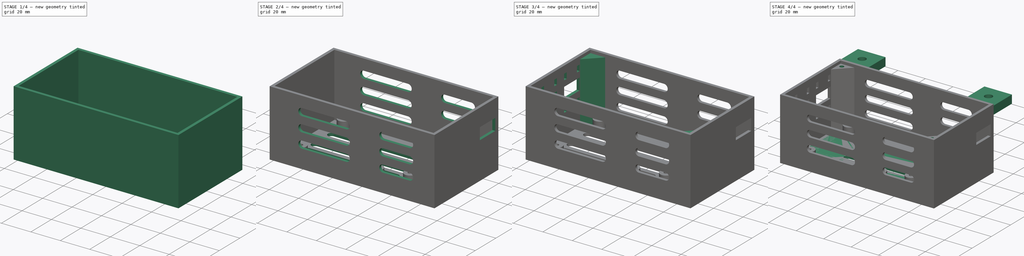
[diagram: build sequence overview — one tinted view per stage of 4, left to right]
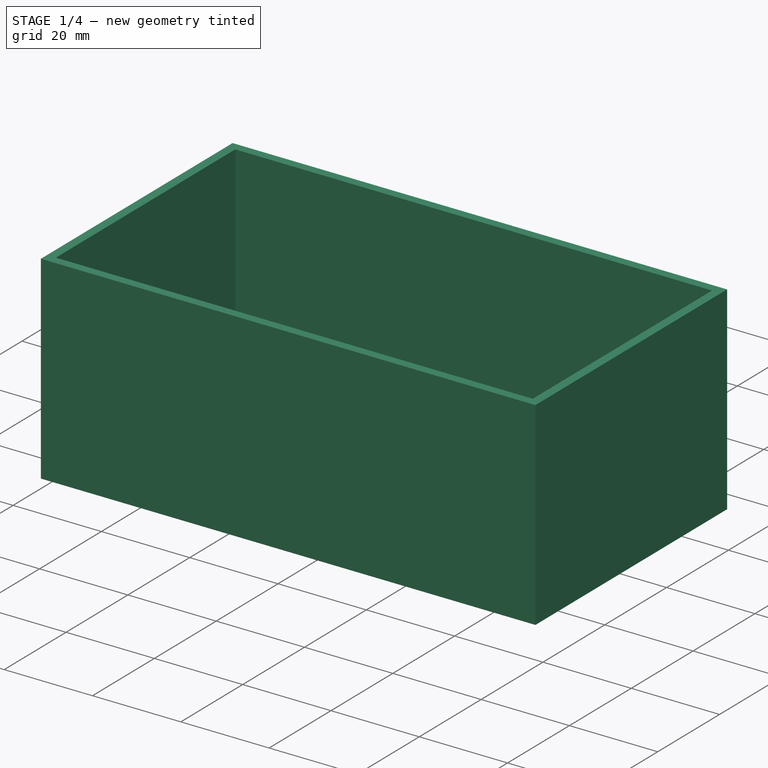
[diagram: stage 1 of 4 — iso view after this stage's code; geometry added in this stage tinted green]
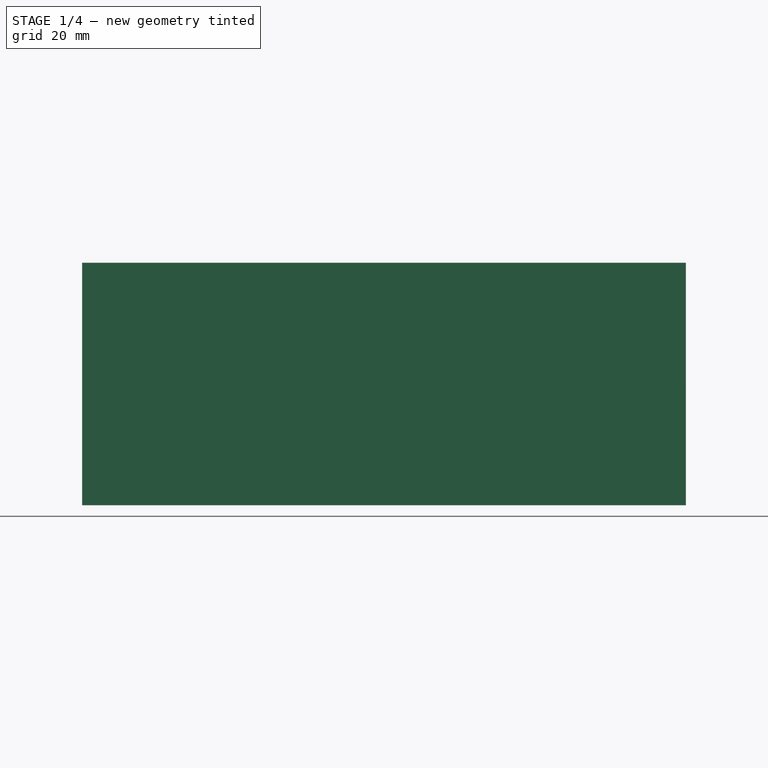
[diagram: stage 1 of 4 — front view after this stage's code; geometry added in this stage tinted green]
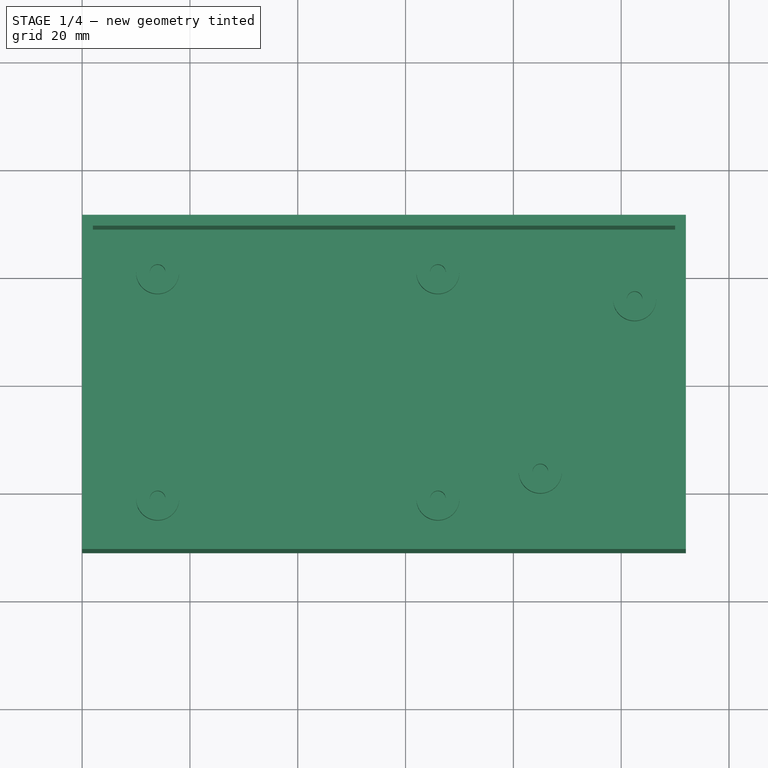
[diagram: stage 1 of 4 — top view after this stage's code; geometry added in this stage tinted green]
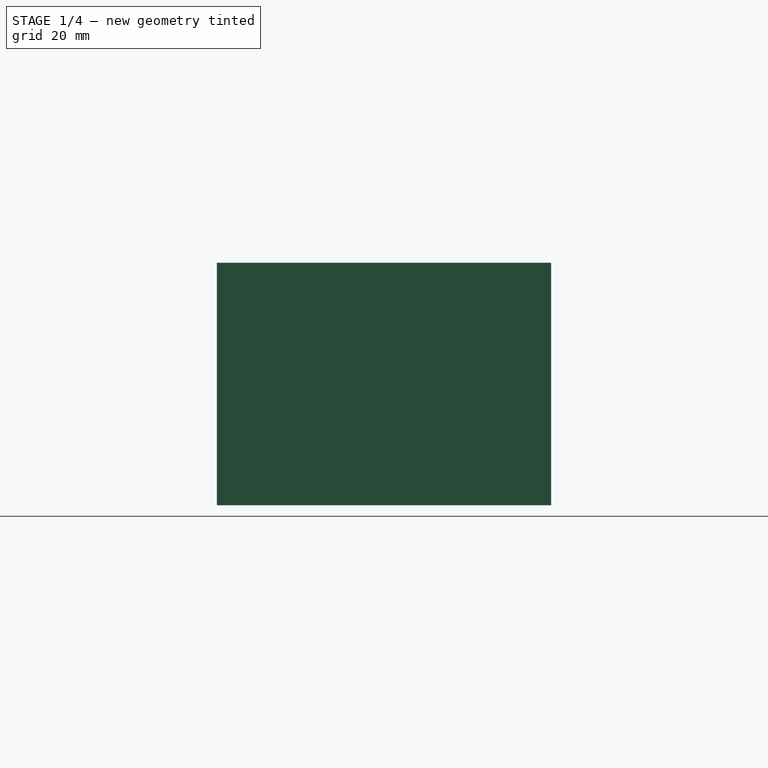
[diagram: stage 1 of 4 — right view after this stage's code; geometry added in this stage tinted green]
FCSTD DOCUMENT  (FreeCAD 0.20R27861 (Git))
Label: HB MOSFET and buck converter box
License: All rights reserved
LicenseURL: http://en.wikipedia.org/wiki/All_rights_reserved
objects: Part::Feature×16, Sketcher::SketchObject×10, PartDesign::Pad×5, PartDesign::Pocket×5, App::Part×2, PartDesign::Plane×2, PartDesign::Body×2, PartDesign::SubShapeBinder×1, PartDesign::Thickness×1
note: 53 computed .brp shape members not serialized (recipe doc carries the construction recipe); baked Part::Feature solids carry a one-line shape summary decoded from their .brp

FEATURE [Part::Feature] Part__Feature  label="BIQU-3D0109 Board"
  shape: bbox 60 x 50 x 1.5 mm, 838 faces (baked)
FEATURE [Part::Feature] Part__Feature001  label="KF1000"
  Placement = pos=(-11.9373,-0.980298,8.81355) rot=(1,0,0;1.5708rad)
  shape: bbox 14.51 x 41.21 x 17.09 mm, 508 faces, 13 solids (baked)
FEATURE [Part::Feature] Part__Feature002  label="SOIC-4 (Fairchild)"
  Placement = pos=(17.149,18.8625,1.4) rot=(1,0,0;1.5708rad)
  shape: bbox 4.7 x 6.2 x 1.75 mm, 203 faces (baked)
FEATURE [Part::Feature] Part__Feature003  label="SHELL"
  shape: bbox 1.1 x 0.8 x 0.05 mm, 6 faces, 0 solids (baked)
FEATURE [Part::Feature] Part__Feature004  label="COMPOUND"
  shape: bbox 1.6 x 0.9603 x 0.45 mm, 12 faces, 2 solids (baked)
FEATURE [App::Part] RES0603
  Group = -> [Part__Feature003,Part__Feature004]
  Origin = -> Origin
  Placement = pos=(-6.30389,22.6625,2.03313) rot=(0,0,1;0rad)
FEATURE [Part::Feature] Part__Feature005  label="Surface Mount Chip LED 3.2x1.6mm 2"
  Placement = pos=(-12.9211,22.9749,1.39798) rot=(0,0,1;0rad)
  shape: bbox 2.771 x 1.491 x 0.6672 mm, 108 faces, 0 solids (baked)
FEATURE [Part::Feature] Part__Feature006  label="RES0805 ipt"
  Placement = pos=(0.20371,20.6103,1.75) rot=(0.578357,0.576846,0.576846;2.09288rad)
  shape: bbox 1.255 x 2.003 x 0.5 mm, 44 faces, 3 solids (baked)
FEATURE [Part::Feature] Part__Feature007  label="RES0805 ipt001"
  Placement = pos=(7.52561,-23.6671,1.75) rot=(1,0,0;1.5708rad)
  shape: bbox 2 x 1.25 x 0.5 mm, 44 faces, 3 solids (baked)
FEATURE [Part::Feature] Part__Feature008  label="RES0805 ipt002"
  Placement = pos=(12.3309,-23.6577,1.75) rot=(1,0,0;1.5708rad)
  shape: bbox 2 x 1.25 x 0.5 mm, 44 faces, 3 solids (baked)
FEATURE [Part::Feature] Part__Feature009  label="RES0805 ipt003"
  Placement = pos=(17.5166,-23.6062,1.75) rot=(1,0,0;1.5708rad)
  shape: bbox 2 x 1.25 x 0.5 mm, 44 faces, 3 solids (baked)
FEATURE [Part::Feature] Part__Feature010  label="Surface Mount Chip LED 3.2x1.6mm 003"
  Placement = pos=(2.01576,20.4791,1.39798) rot=(0,0,-1;1.57048rad)
  shape: bbox 1.492 x 2.772 x 0.6672 mm, 108 faces, 0 solids (baked)
FEATURE [Part::Feature] Part__Feature011  label="Part41"
  Placement = pos=(14.4584,1.54168,1.5) rot=(0,0,1;0rad)
  shape: bbox 16 x 23 x 27 mm, 55 faces (baked)
FEATURE [Part::Feature] Part__Feature012  label="817C"
  Placement = pos=(13.35,-16.97,3.41) rot=(0,0,1;1.5708rad)
  shape: bbox 10.18 x 4.6 x 3.76 mm, 166 faces (baked)
FEATURE [Part::Feature] Part__Feature013  label="HA210N06"
  Placement = pos=(11.0584,1.16668,15.55) rot=(0.57735,-0.57735,-0.57735;2.0944rad)
  shape: bbox 4.8 x 15.6 x 26.4 mm, 44 faces (baked)
FEATURE [Part::Feature] Part__Feature014  label="BIQU-3D0109 WhiteConnector"
  Placement = pos=(8.05,18.55,5) rot=(0,0,1;0rad)
  shape: bbox 7.517 x 5.717 x 9.217 mm, 99 faces, 3 solids (baked)
FEATURE [Part::Feature] Part__Feature015  label="DIN EN ISO 7045 - M3 x 8 - 4.8 - Z"
  Placement = pos=(8.65837,1.16668,20.5) rot=(0,0,1;0rad)
  shape: bbox 10.42 x 6.001 x 6.001 mm, 43 faces (baked)
FEATURE [App::Part] BIQU_3D0109  label="BIQU-3D0109"
  Group = -> [Part__Feature,Part__Feature001,Part__Feature002,RES0603,Part__Feature005,Part__Feature006,Part__Feature007,Part__Feature008,Part__Feature009,Part__Feature010,Part__Feature011,Part__Feature012,Part__Feature013,Part__Feature014,Part__Feature015]
  Origin = -> Origin001
  Placement = pos=(0,0,9) rot=(0,0,1;0rad)
FEATURE [PartDesign::SubShapeBinder] Binder
  BindCopyOnChange = 0
  BindMode = 0
  ClaimChildren = false
  Context = -> Body [Binder.]
  Fuse = false
  MakeFace = true
  PartialLoad = false
  Relative = true
  Support = -> [BIQU_3D0109]
  _Version = 2
FEATURE [Sketcher::SketchObject] Sketch
  FullyConstrained = true
  MapMode = 5
  Support = -> [XY_Plane002]
  sketch-geometry (4):
    g0: LineSegment StartX=-40 StartY=31 StartZ=0 EndX=72 EndY=31 EndZ=0
    g1: LineSegment StartX=72 StartY=31 StartZ=0 EndX=72 EndY=-31 EndZ=0
    g2: LineSegment StartX=72 StartY=-31 StartZ=0 EndX=-40 EndY=-31 EndZ=0
    g3: LineSegment StartX=-40 StartY=-31 StartZ=0 EndX=-40 EndY=31 EndZ=0
  constraints (11):
    c: Coincident(g0,g1)
    c: Coincident(g1,g2)
    c: Coincident(g2,g3)
    c: Coincident(g3,g0)
    c: Horizontal(g0)
    c: Horizontal(g2)
    c: Vertical(g1)
    c: Symmetric(g0,g2,g-1)
    c: DistanceX(g0,g-1) = 40
    c: DistanceY(g-1,g0) = 31
    c: DistanceX(g0,g0) = 112
FEATURE [PartDesign::Pad] Pad
  Direction = (0,0,1)
  Length = 45
  Length2 = 10
  Profile = -> Sketch
  ReferenceAxis = -> Sketch [N_Axis]
  Refine = true
  Type = 0
FEATURE [PartDesign::Thickness] Thickness
  Base = -> Pad [Face6]
  BaseFeature = -> Pad
  Intersection = false
  Join = 1
  Mode = 0
  Refine = true
  Reversed = true
  SupportTransform = false
  Value = 2
FEATURE [Sketcher::SketchObject] Sketch001
  ExternalGeometry = -> [Binder]
  FullyConstrained = true
  MapMode = 5
  Support = -> [XY_Plane002]
  sketch-geometry (16):
    g0: Circle CenterX=-26 CenterY=21 CenterZ=0 NormalX=0 NormalY=0 NormalZ=1 AngleXU=0 Radius=4
    g1: Circle CenterX=26 CenterY=21 CenterZ=0 NormalX=0 NormalY=0 NormalZ=1 AngleXU=0 Radius=4
    g2: Circle CenterX=-26 CenterY=-21 CenterZ=0 NormalX=0 NormalY=0 NormalZ=1 AngleXU=0 Radius=4
    g3: Circle CenterX=26 CenterY=-21 CenterZ=0 NormalX=0 NormalY=0 NormalZ=1 AngleXU=0 Radius=4
    g4: Circle CenterX=-26 CenterY=21 CenterZ=0 NormalX=0 NormalY=0 NormalZ=1 AngleXU=0 Radius=1.45
    g5: Circle CenterX=26 CenterY=21 CenterZ=0 NormalX=0 NormalY=0 NormalZ=1 AngleXU=0 Radius=1.45
    g6: Circle CenterX=-26 CenterY=-21 CenterZ=0 NormalX=0 NormalY=0 NormalZ=1 AngleXU=0 Radius=1.45
    g7: Circle CenterX=26 CenterY=-21 CenterZ=0 NormalX=0 NormalY=0 NormalZ=1 AngleXU=0 Radius=1.45
    g8: LineSegment StartX=45 StartY=16 StartZ=0 EndX=62.5 EndY=16 EndZ=0
    g9: LineSegment StartX=62.5 StartY=16 StartZ=0 EndX=62.5 EndY=-16 EndZ=0
    g10: LineSegment StartX=62.5 StartY=-16 StartZ=0 EndX=45 EndY=-16 EndZ=0
    g11: LineSegment StartX=45 StartY=-16 StartZ=0 EndX=45 EndY=16 EndZ=0
    g12: Circle CenterX=62.5 CenterY=16 CenterZ=0 NormalX=0 NormalY=0 NormalZ=1 AngleXU=0 Radius=4
    g13: Circle CenterX=45 CenterY=-16 CenterZ=0 NormalX=0 NormalY=0 NormalZ=1 AngleXU=0 Radius=4
    g14: Circle CenterX=62.5 CenterY=16 CenterZ=0 NormalX=0 NormalY=0 NormalZ=1 AngleXU=0 Radius=1.45
    g15: Circle CenterX=45 CenterY=-16 CenterZ=0 NormalX=0 NormalY=0 NormalZ=1 AngleXU=0 Radius=1.45
  constraints (35):
    c: Coincident(g0,g-3)
    c: Diameter(g0) = 8
    c: Coincident(g1,g-4)
    c: Coincident(g2,g-5)
    c: Coincident(g3,g-6)
    c: Equal(g0,g1)
    c: Equal(g1,g2)
    c: Equal(g2,g3)
    c: Coincident(g4,g0)
    c: Coincident(g5,g1)
    c: Diameter(g5) = 2.9
    c: Equal(g4,g5)
    c: Coincident(g6,g2)
    c: Coincident(g7,g3)
    c: Equal(g6,g7)
    c: Equal(g7,g5)
    c: Coincident(g8,g9)
    c: Coincident(g9,g10)
    c: Coincident(g10,g11)
    c: Coincident(g11,g8)
    c: Horizontal(g8)
    c: Horizontal(g10)
    c: Vertical(g11)
    c: Symmetric(g9,g8,g-1)
    c: DistanceX(g8,g8) = 17.5
    c: DistanceY(g9,g9) = 32
    c: DistanceX(g-1,g10) = 45
    c: Coincident(g12,g8)
    c: Coincident(g13,g10)
    c: Coincident(g14,g12)
    c: Coincident(g15,g13)
    c: Equal(g15,g14)
    c: Equal(g14,g5)
    c: Equal(g13,g12)
    c: Equal(g12,g0)
FEATURE [PartDesign::Pad] Pad001
  BaseFeature = -> Thickness
  Direction = (0,0,1)
  Length = 9
  Length2 = 10
  Profile = -> Sketch001
  ReferenceAxis = -> Sketch001 [N_Axis]
  Refine = true
  Type = 0
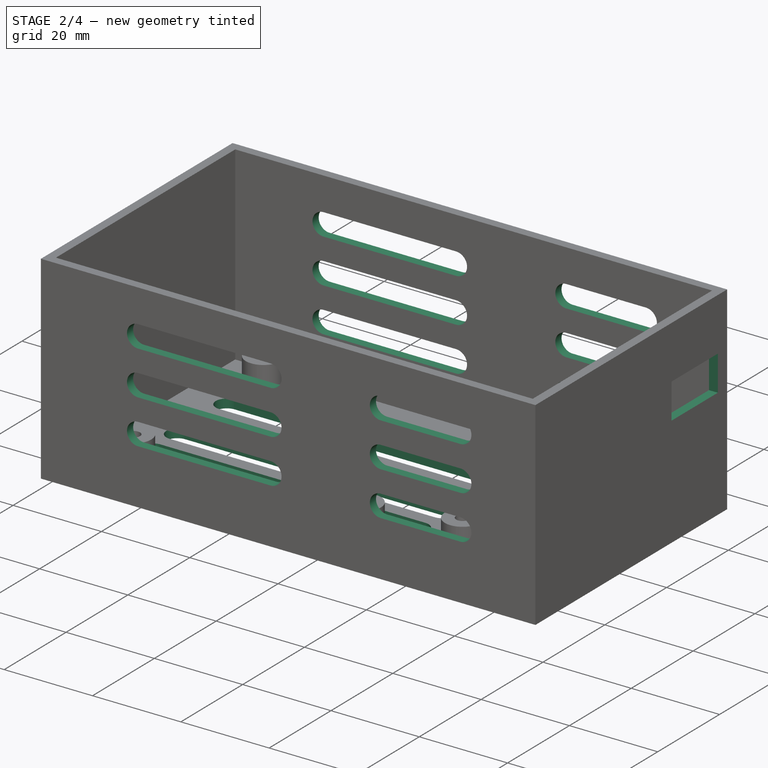
[diagram: stage 2 of 4 — iso view after this stage's code; geometry added in this stage tinted green]
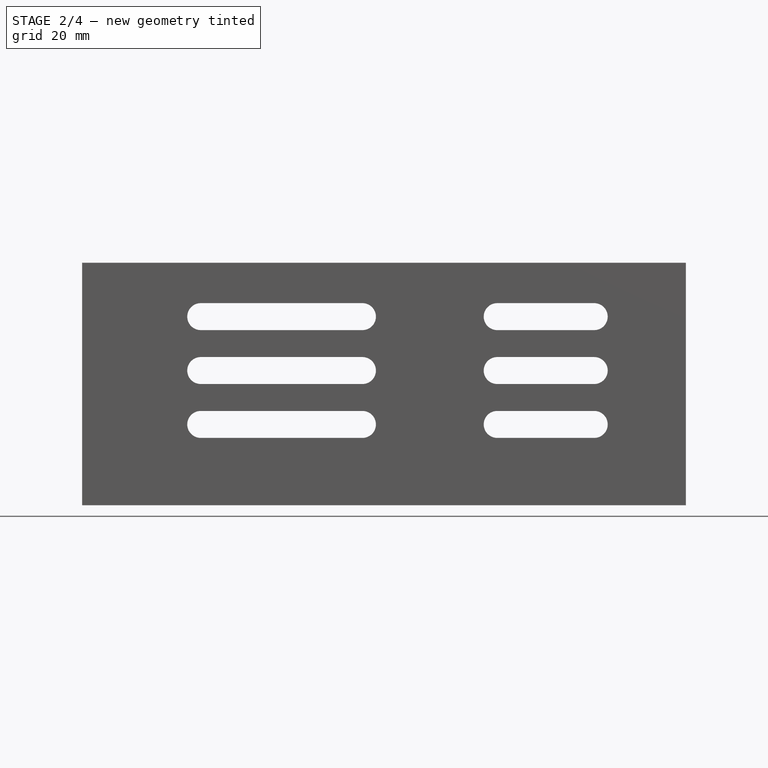
[diagram: stage 2 of 4 — front view after this stage's code; geometry added in this stage tinted green]
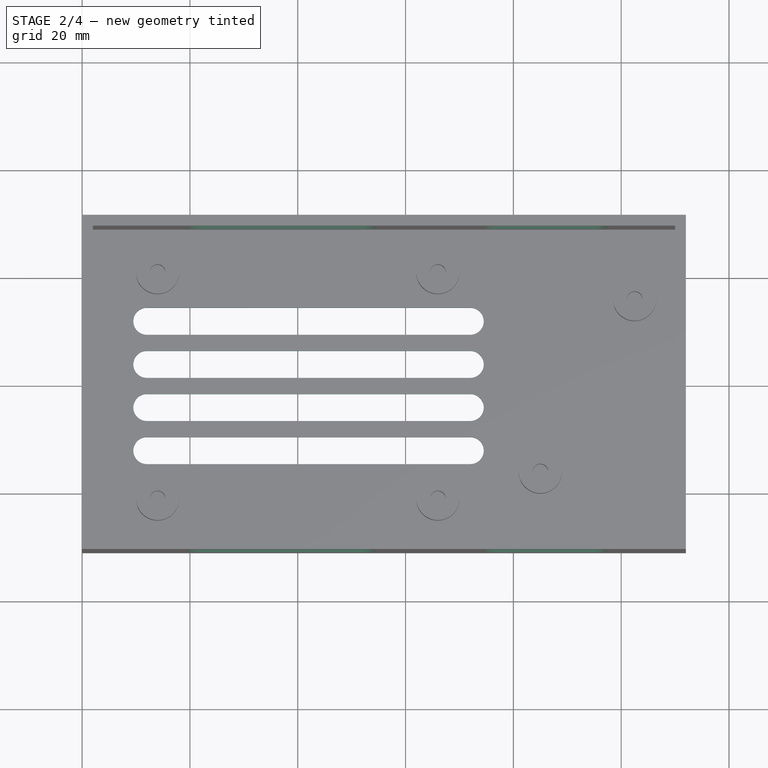
[diagram: stage 2 of 4 — top view after this stage's code; geometry added in this stage tinted green]
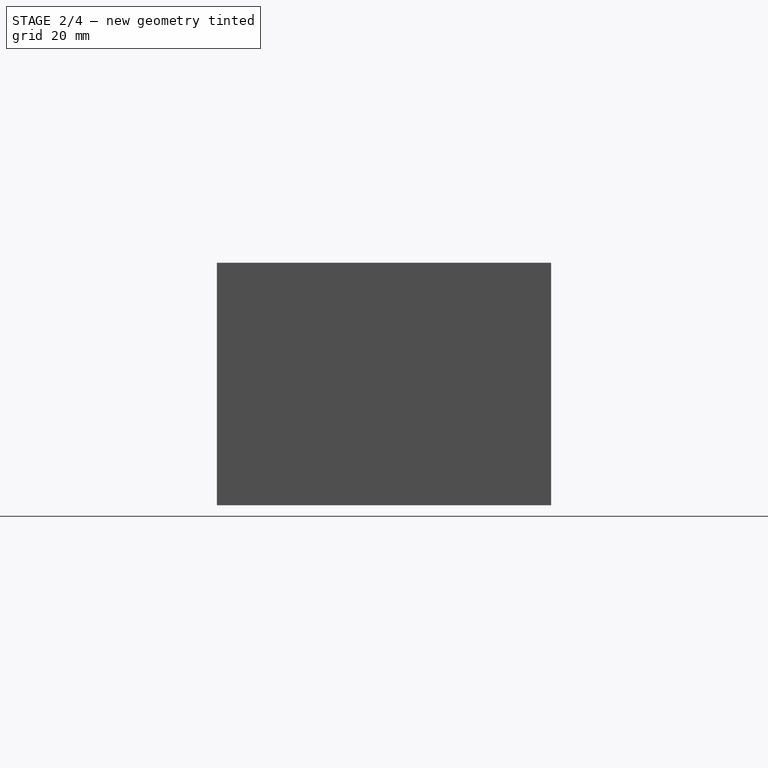
[diagram: stage 2 of 4 — right view after this stage's code; geometry added in this stage tinted green]
FEATURE [Sketcher::SketchObject] Sketch002
  FullyConstrained = true
  MapMode = 5
  Support = -> [XY_Plane002]
  sketch-geometry (19):
    g0: ArcOfCircle CenterX=-28 CenterY=12 CenterZ=0 NormalX=0 NormalY=0 NormalZ=1 AngleXU=0 Radius=2.5 StartAngle=1.5708 EndAngle=4.71239
    g1: ArcOfCircle CenterX=32 CenterY=12 CenterZ=0 NormalX=0 NormalY=0 NormalZ=1 AngleXU=0 Radius=2.5 StartAngle=4.71239 EndAngle=7.85398
    g2: LineSegment StartX=-28 StartY=9.5 StartZ=0 EndX=32 EndY=9.5 EndZ=0
    g3: LineSegment StartX=32 StartY=14.5 StartZ=0 EndX=-28 EndY=14.5 EndZ=0
    g4: ArcOfCircle CenterX=-28 CenterY=4 CenterZ=0 NormalX=0 NormalY=0 NormalZ=1 AngleXU=0 Radius=2.5 StartAngle=1.5708 EndAngle=4.71239
    g5: ArcOfCircle CenterX=32 CenterY=4 CenterZ=0 NormalX=0 NormalY=0 NormalZ=1 AngleXU=0 Radius=2.5 StartAngle=4.71239 EndAngle=7.85398
    g6: LineSegment StartX=-28 StartY=1.5 StartZ=0 EndX=32 EndY=1.5 EndZ=0
    g7: LineSegment StartX=32 StartY=6.5 StartZ=0 EndX=-28 EndY=6.5 EndZ=0
    g8: ArcOfCircle CenterX=-28 CenterY=-4 CenterZ=0 NormalX=0 NormalY=0 NormalZ=1 AngleXU=0 Radius=2.5 StartAngle=1.5708 EndAngle=4.71239
    g9: ArcOfCircle CenterX=32 CenterY=-4 CenterZ=0 NormalX=0 NormalY=0 NormalZ=1 AngleXU=0 Radius=2.5 StartAngle=4.71239 EndAngle=7.85398
    g10: LineSegment StartX=-28 StartY=-6.5 StartZ=0 EndX=32 EndY=-6.5 EndZ=0
    g11: LineSegment StartX=32 StartY=-1.5 StartZ=0 EndX=-28 EndY=-1.5 EndZ=0
    g12: LineSegment StartX=32 StartY=12 StartZ=0 EndX=32 EndY=4 EndZ=0
    g13: LineSegment StartX=32 StartY=4 StartZ=0 EndX=32 EndY=-4 EndZ=0
    g14: ArcOfCircle CenterX=-28 CenterY=-12 CenterZ=0 NormalX=0 NormalY=0 NormalZ=1 AngleXU=0 Radius=2.5 StartAngle=1.5708 EndAngle=4.71239
    g15: ArcOfCircle CenterX=32 CenterY=-12 CenterZ=0 NormalX=0 NormalY=0 NormalZ=1 AngleXU=0 Radius=2.5 StartAngle=4.71239 EndAngle=7.85398
    g16: LineSegment StartX=-28 StartY=-14.5 StartZ=0 EndX=32 EndY=-14.5 EndZ=0
    g17: LineSegment StartX=32 StartY=-9.5 StartZ=0 EndX=-28 EndY=-9.5 EndZ=0
    g18: LineSegment StartX=-28 StartY=-12 StartZ=0 EndX=-28 EndY=-4 EndZ=0
  constraints (46):
    c: Tangent(g0,g2) = -1.5708
    c: Tangent(g2,g1) = -1.5708
    c: Tangent(g1,g3) = -1.5708
    c: Tangent(g3,g0) = -1.5708
    c: Equal(g0,g1)
    c: Horizontal(g2)
    c: Diameter(g0) = 5
    c: DistanceX(g0,g-1) = 28
    c: Tangent(g4,g6) = -1.5708
    c: Tangent(g6,g5) = -1.5708
    c: Tangent(g5,g7) = -1.5708
    c: Tangent(g7,g4) = -1.5708
    c: Equal(g4,g5)
    c: Horizontal(g6)
    c: Equal(g6,g2)
    c: Equal(g5,g1)
    c: Tangent(g8,g10) = -1.5708
    c: Tangent(g10,g9) = -1.5708
    c: Tangent(g9,g11) = -1.5708
    c: Tangent(g11,g8) = -1.5708
    c: Equal(g8,g9)
    c: Horizontal(g10)
    c: Equal(g11,g6)
    c: Equal(g9,g5)
    c: Vertical(g4,g0)
    c: Vertical(g0,g8)
    c: Coincident(g12,g1)
    c: Coincident(g12,g5)
    c: Coincident(g13,g5)
    c: Coincident(g13,g9)
    c: Equal(g12,g13)
    c: DistanceY(g12,g12) = 8
    c: DistanceY(g1) = 12
    c: Tangent(g14,g16) = -1.5708
    c: Tangent(g16,g15) = -1.5708
    c: Tangent(g15,g17) = -1.5708
    c: Tangent(g17,g14) = -1.5708
    c: Equal(g14,g15)
    c: Horizontal(g16)
    c: Equal(g14,g8)
    c: Coincident(g18,g14)
    c: Coincident(g18,g8)
    c: Vertical(g18)
    c: Equal(g18,g13)
    c: DistanceX(g16,g16) = 60
    c: Equal(g10,g17)
FEATURE [PartDesign::Pocket] Pocket
  BaseFeature = -> Pad001
  Direction = (0,0,-1)
  Length = 5
  Length2 = 5
  Profile = -> Sketch002
  ReferenceAxis = -> Sketch002 [N_Axis]
  Refine = true
  Reversed = true
  Type = 0
FEATURE [Sketcher::SketchObject] Sketch003
  FullyConstrained = true
  MapMode = 5
  Placement = pos=(0,0,0) rot=(1,0,0;1.5708rad)
  Support = -> [XZ_Plane002]
  sketch-geometry (26):
    g0: ArcOfCircle CenterX=-18 CenterY=35 CenterZ=0 NormalX=0 NormalY=0 NormalZ=1 AngleXU=0 Radius=2.5 StartAngle=1.5708 EndAngle=4.71239
    g1: ArcOfCircle CenterX=12 CenterY=35 CenterZ=0 NormalX=0 NormalY=0 NormalZ=1 AngleXU=0 Radius=2.5 StartAngle=4.71239 EndAngle=7.85398
    g2: LineSegment StartX=-18 StartY=32.5 StartZ=0 EndX=12 EndY=32.5 EndZ=0
    g3: LineSegment StartX=12 StartY=37.5 StartZ=0 EndX=-18 EndY=37.5 EndZ=0
    g4: ArcOfCircle CenterX=-18 CenterY=25 CenterZ=0 NormalX=0 NormalY=0 NormalZ=1 AngleXU=0 Radius=2.5 StartAngle=1.5708 EndAngle=4.71239
    g5: ArcOfCircle CenterX=12 CenterY=25 CenterZ=0 NormalX=0 NormalY=0 NormalZ=1 AngleXU=0 Radius=2.5 StartAngle=4.71239 EndAngle=7.85398
    g6: LineSegment StartX=-18 StartY=22.5 StartZ=0 EndX=12 EndY=22.5 EndZ=0
    g7: LineSegment StartX=12 StartY=27.5 StartZ=0 EndX=-18 EndY=27.5 EndZ=0
    g8: ArcOfCircle CenterX=-18 CenterY=15 CenterZ=0 NormalX=0 NormalY=0 NormalZ=1 AngleXU=0 Radius=2.5 StartAngle=1.5708 EndAngle=4.71239
    g9: ArcOfCircle CenterX=12 CenterY=15 CenterZ=0 NormalX=0 NormalY=0 NormalZ=1 AngleXU=0 Radius=2.5 StartAngle=4.71239 EndAngle=7.85398
    g10: LineSegment StartX=-18 StartY=12.5 StartZ=0 EndX=12 EndY=12.5 EndZ=0
    g11: LineSegment StartX=12 StartY=17.5 StartZ=0 EndX=-18 EndY=17.5 EndZ=0
    g12: ArcOfCircle CenterX=37 CenterY=35 CenterZ=0 NormalX=0 NormalY=0 NormalZ=1 AngleXU=0 Radius=2.5 StartAngle=1.5708 EndAngle=4.71239
    g13: ArcOfCircle CenterX=55 CenterY=35 CenterZ=0 NormalX=0 NormalY=0 NormalZ=1 AngleXU=0 Radius=2.5 StartAngle=4.71239 EndAngle=7.85398
    g14: LineSegment StartX=37 StartY=32.5 StartZ=0 EndX=55 EndY=32.5 EndZ=0
    g15: LineSegment StartX=55 StartY=37.5 StartZ=0 EndX=37 EndY=37.5 EndZ=0
    g16: ArcOfCircle CenterX=37 CenterY=25 CenterZ=0 NormalX=0 NormalY=0 NormalZ=1 AngleXU=0 Radius=2.5 StartAngle=1.5708 EndAngle=4.71239
    g17: ArcOfCircle CenterX=55 CenterY=25 CenterZ=0 NormalX=0 NormalY=0 NormalZ=1 AngleXU=0 Radius=2.5 StartAngle=4.71239 EndAngle=7.85398
    g18: LineSegment StartX=37 StartY=22.5 StartZ=0 EndX=55 EndY=22.5 EndZ=0
    g19: LineSegment StartX=55 StartY=27.5 StartZ=0 EndX=37 EndY=27.5 EndZ=0
    g20: LineSegment StartX=12 StartY=35 StartZ=0 EndX=12 EndY=25 EndZ=0
    g21: LineSegment StartX=12 StartY=25 StartZ=0 EndX=12 EndY=15 EndZ=0
    g22: ArcOfCircle CenterX=37 CenterY=15 CenterZ=0 NormalX=0 NormalY=0 NormalZ=1 AngleXU=0 Radius=2.5 StartAngle=1.5708 EndAngle=4.71239
    g23: ArcOfCircle CenterX=55 CenterY=15 CenterZ=0 NormalX=0 NormalY=0 NormalZ=1 AngleXU=0 Radius=2.5 StartAngle=4.71239 EndAngle=7.85398
    g24: LineSegment StartX=37 StartY=12.5 StartZ=0 EndX=55 EndY=12.5 EndZ=0
    g25: LineSegment StartX=55 StartY=17.5 StartZ=0 EndX=37 EndY=17.5 EndZ=0
  constraints (64):
    c: Tangent(g0,g2) = -1.5708
    c: Tangent(g2,g1) = -1.5708
    c: Tangent(g1,g3) = -1.5708
    c: Tangent(g3,g0) = -1.5708
    c: Equal(g0,g1)
    c: Horizontal(g2)
    c: Tangent(g4,g6) = -1.5708
    c: Tangent(g6,g5) = -1.5708
    c: Tangent(g5,g7) = -1.5708
    c: Tangent(g7,g4) = -1.5708
    c: Equal(g4,g5)
    c: Horizontal(g6)
    c: Tangent(g8,g10) = -1.5708
    c: Tangent(g10,g9) = -1.5708
    c: Tangent(g9,g11) = -1.5708
    c: Tangent(g11,g8) = -1.5708
    c: Equal(g8,g9)
    c: Horizontal(g10)
    c: Tangent(g12,g14) = -1.5708
    c: Tangent(g14,g13) = -1.5708
    c: Tangent(g13,g15) = -1.5708
    c: Tangent(g15,g12) = -1.5708
    c: Equal(g12,g13)
    c: Horizontal(g14)
    c: Tangent(g16,g18) = -1.5708
    c: Tangent(g18,g17) = -1.5708
    c: Tangent(g17,g19) = -1.5708
    c: Tangent(g19,g16) = -1.5708
    c: Equal(g16,g17)
    c: Horizontal(g18)
    c: Diameter(g0) = 5
    c: Equal(g0,g4)
    c: Equal(g4,g8)
    c: Equal(g0,g12)
    c: Equal(g12,g16)
    c: Vertical(g4,g0)
    c: Vertical(g0,g8)
    c: Vertical(g12,g16)
    c: DistanceX(g3,g3) = 30
    c: Coincident(g20,g1)
    c: Coincident(g20,g5)
    c: Coincident(g21,g5)
    c: Coincident(g21,g9)
    c: Horizontal(g5,g16)
    c: Horizontal(g1,g12)
    c: Equal(g20,g21)
    c: DistanceY(g20,g20) = 10
    c: DistanceX(g1,g12) = 25
    c: DistanceY(g-1,g9) = 15
    c: DistanceX(g8,g-1) = 18
    c: DistanceX(g15,g15) = 18
    c: Equal(g19,g15)
    c: Vertical(g21)
    c: Vertical(g20)
    c: Tangent(g22,g24) = -1.5708
    c: Tangent(g24,g23) = -1.5708
    c: Tangent(g23,g25) = -1.5708
    c: Tangent(g25,g22) = -1.5708
    c: Equal(g22,g23)
    c: Horizontal(g24)
    c: Equal(g25,g19)
    c: Equal(g16,g22)
    c: Vertical(g22,g16)
    c: Horizontal(g9,g22)
FEATURE [PartDesign::Pocket] Pocket001
  BaseFeature = -> Pocket
  Direction = (0,1,-2e-16)
  Length = 5
  Length2 = 5
  Midplane = true
  Profile = -> Sketch003
  ReferenceAxis = -> Sketch003 [N_Axis]
  Refine = true
  Type = 1
FEATURE [Sketcher::SketchObject] Sketch004
  FullyConstrained = true
  MapMode = 5
  Placement = pos=(0,0,0) rot=(0.57735,0.57735,0.57735;2.0944rad)
  Support = -> [YZ_Plane002]
  sketch-geometry (4):
    g0: LineSegment StartX=13 StartY=33 StartZ=0 EndX=28 EndY=33 EndZ=0
    g1: LineSegment StartX=28 StartY=33 StartZ=0 EndX=28 EndY=25 EndZ=0
    g2: LineSegment StartX=28 StartY=25 StartZ=0 EndX=13 EndY=25 EndZ=0
    g3: LineSegment StartX=13 StartY=25 StartZ=0 EndX=13 EndY=33 EndZ=0
  constraints (12):
    c: Coincident(g0,g1)
    c: Coincident(g1,g2)
    c: Coincident(g2,g3)
    c: Coincident(g3,g0)
    c: Horizontal(g0)
    c: Vertical(g1)
    c: Vertical(g3)
    c: DistanceY(g1,g1) = 8
    c: DistanceX(g0,g0) = 15
    c: Horizontal(g2)
    c: DistanceY(g-1,g1) = 25
    c: DistanceX(g-1,g1) = 28
FEATURE [PartDesign::Pocket] Pocket002
  BaseFeature = -> Pocket001
  Direction = (-1,2e-16,-3e-16)
  Length = 5
  Length2 = 5
  Profile = -> Sketch004
  ReferenceAxis = -> Sketch004 [N_Axis]
  Refine = true
  Reversed = true
  Type = 1
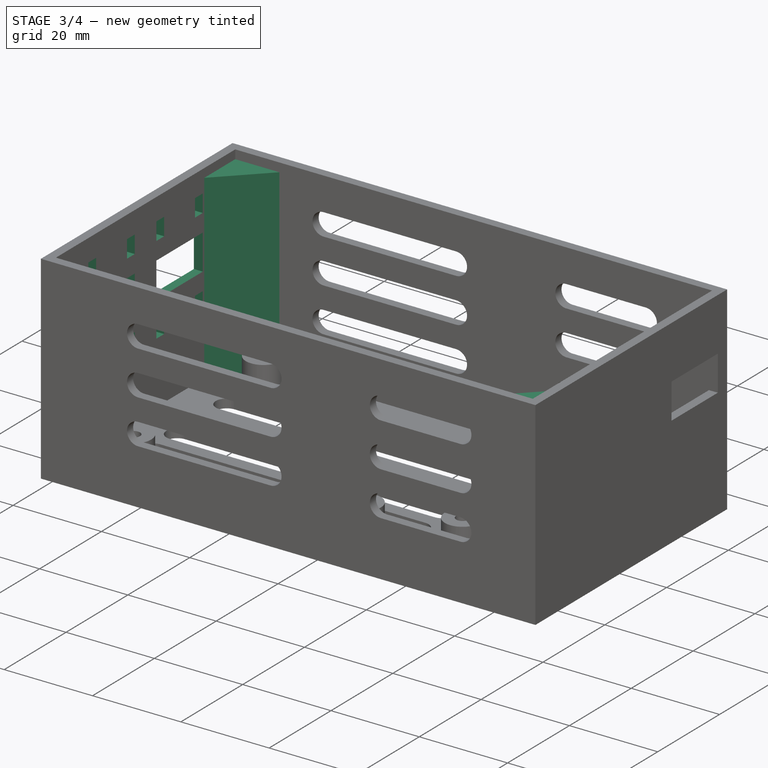
[diagram: stage 3 of 4 — iso view after this stage's code; geometry added in this stage tinted green]
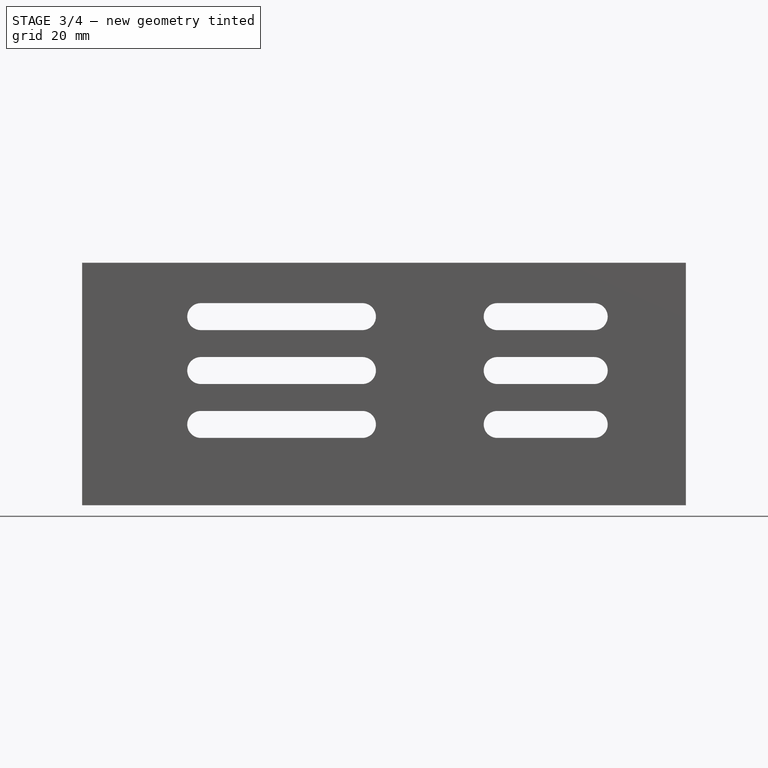
[diagram: stage 3 of 4 — front view after this stage's code; geometry added in this stage tinted green]
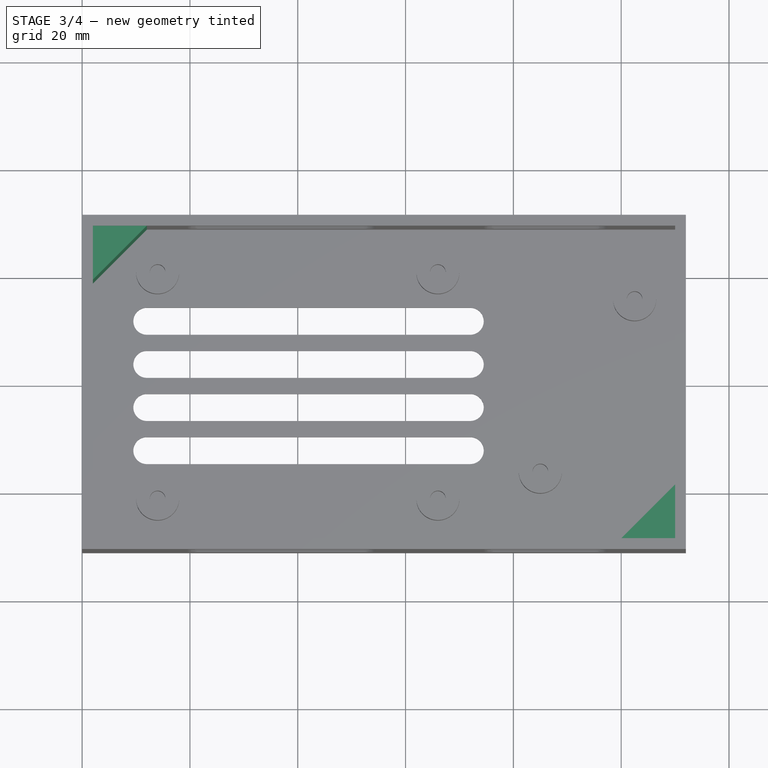
[diagram: stage 3 of 4 — top view after this stage's code; geometry added in this stage tinted green]
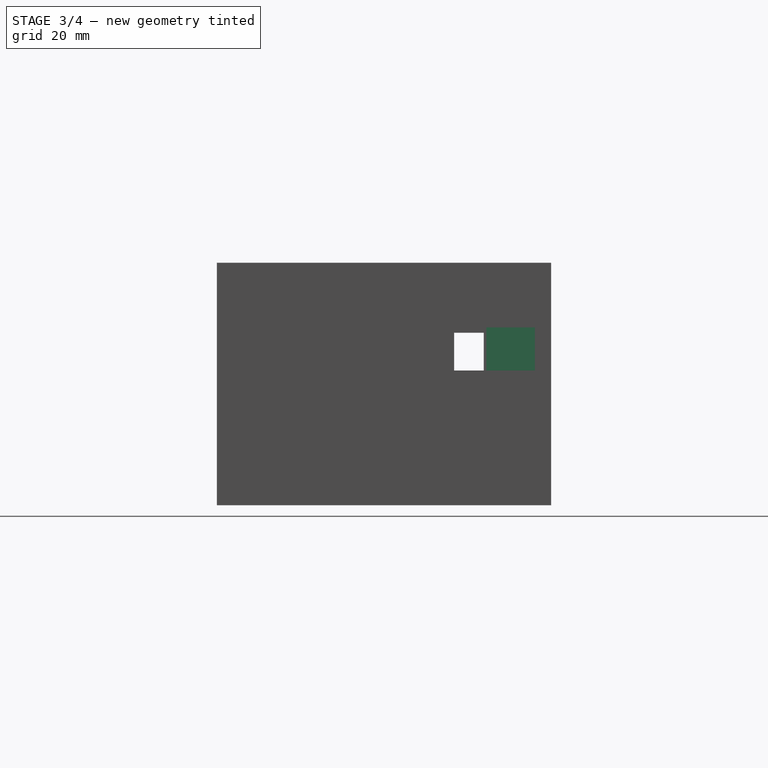
[diagram: stage 3 of 4 — right view after this stage's code; geometry added in this stage tinted green]
FEATURE [Sketcher::SketchObject] Sketch005
  FullyConstrained = true
  MapMode = 5
  Placement = pos=(0,0,0) rot=(0.57735,0.57735,0.57735;2.0944rad)
  Support = -> [YZ_Plane002]
  sketch-geometry (42):
    g0: LineSegment StartX=-18.5 StartY=32 StartZ=0 EndX=-3.5 EndY=32 EndZ=0
    g1: LineSegment StartX=-3.5 StartY=32 StartZ=0 EndX=-3.5 EndY=24 EndZ=0
    g2: LineSegment StartX=-3.5 StartY=24 StartZ=0 EndX=-18.5 EndY=24 EndZ=0
    g3: LineSegment StartX=-18.5 StartY=24 StartZ=0 EndX=-18.5 EndY=32 EndZ=0
    g4: LineSegment StartX=3.5 StartY=32 StartZ=0 EndX=18.5 EndY=32 EndZ=0
    g5: LineSegment StartX=18.5 StartY=32 StartZ=0 EndX=18.5 EndY=24 EndZ=0
    g6: LineSegment StartX=18.5 StartY=24 StartZ=0 EndX=3.5 EndY=24 EndZ=0
    g7: LineSegment StartX=3.5 StartY=24 StartZ=0 EndX=3.5 EndY=32 EndZ=0
    g8: LineSegment StartX=-18.5 StartY=40 StartZ=0 EndX=-16 EndY=40 EndZ=0
    g9: LineSegment StartX=-16 StartY=40 StartZ=0 EndX=-16 EndY=36 EndZ=0
    g10: LineSegment StartX=-16 StartY=36 StartZ=0 EndX=-18.5 EndY=36 EndZ=0
    g11: LineSegment StartX=-18.5 StartY=36 StartZ=0 EndX=-18.5 EndY=40 EndZ=0
    g12: LineSegment StartX=-6 StartY=40 StartZ=0 EndX=-3.5 EndY=40 EndZ=0
    g13: LineSegment StartX=-3.5 StartY=40 StartZ=0 EndX=-3.5 EndY=36 EndZ=0
    g14: LineSegment StartX=-3.5 StartY=36 StartZ=0 EndX=-6 EndY=36 EndZ=0
    g15: LineSegment StartX=-6 StartY=36 StartZ=0 EndX=-6 EndY=40 EndZ=0
    g16: LineSegment StartX=3.5 StartY=40 StartZ=0 EndX=6 EndY=40 EndZ=0
    g17: LineSegment StartX=6 StartY=40 StartZ=0 EndX=6 EndY=36 EndZ=0
    g18: LineSegment StartX=6 StartY=36 StartZ=0 EndX=3.5 EndY=36 EndZ=0
    g19: LineSegment StartX=3.5 StartY=36 StartZ=0 EndX=3.5 EndY=40 EndZ=0
    g20: LineSegment StartX=16 StartY=40 StartZ=0 EndX=18.5 EndY=40 EndZ=0
    g21: LineSegment StartX=18.5 StartY=40 StartZ=0 EndX=18.5 EndY=36 EndZ=0
    g22: LineSegment StartX=18.5 StartY=36 StartZ=0 EndX=16 EndY=36 EndZ=0
    g23: LineSegment StartX=16 StartY=36 StartZ=0 EndX=16 EndY=40 EndZ=0
    g24: LineSegment StartX=-18.5 StartY=20 StartZ=0 EndX=-16 EndY=20 EndZ=0
    g25: LineSegment StartX=-16 StartY=20 StartZ=0 EndX=-16 EndY=16 EndZ=0
    g26: LineSegment StartX=-16 StartY=16 StartZ=0 EndX=-18.5 EndY=16 EndZ=0
    g27: LineSegment StartX=-18.5 StartY=16 StartZ=0 EndX=-18.5 EndY=20 EndZ=0
    g28: LineSegment StartX=-6 StartY=20 StartZ=0 EndX=-3.5 EndY=20 EndZ=0
    g29: LineSegment StartX=-3.5 StartY=20 StartZ=0 EndX=-3.5 EndY=16 EndZ=0
    g30: LineSegment StartX=-3.5 StartY=16 StartZ=0 EndX=-6 EndY=16 EndZ=0
    g31: LineSegment StartX=-6 StartY=16 StartZ=0 EndX=-6 EndY=20 EndZ=0
    g32: LineSegment StartX=3.5 StartY=20 StartZ=0 EndX=6 EndY=20 EndZ=0
    g33: LineSegment StartX=6 StartY=20 StartZ=0 EndX=6 EndY=16 EndZ=0
    g34: LineSegment StartX=6 StartY=16 StartZ=0 EndX=3.5 EndY=16 EndZ=0
    g35: LineSegment StartX=3.5 StartY=16 StartZ=0 EndX=3.5 EndY=20 EndZ=0
    g36: LineSegment StartX=16 StartY=20 StartZ=0 EndX=18.5 EndY=20 EndZ=0
    g37: LineSegment StartX=18.5 StartY=20 StartZ=0 EndX=18.5 EndY=16 EndZ=0
    g38: LineSegment StartX=18.5 StartY=16 StartZ=0 EndX=16 EndY=16 EndZ=0
    g39: LineSegment StartX=16 StartY=16 StartZ=0 EndX=16 EndY=20 EndZ=0
    g40: LineSegment StartX=-18.5 StartY=32 StartZ=0 EndX=-18.5 EndY=36 EndZ=0
    g41: LineSegment StartX=-18.5 StartY=20 StartZ=0 EndX=-18.5 EndY=24 EndZ=0
  constraints (123):
    c: Coincident(g0,g1)
    c: Coincident(g1,g2)
    c: Coincident(g2,g3)
    c: Coincident(g3,g0)
    c: Horizontal(g0)
    c: Horizontal(g2)
    c: Vertical(g1)
    c: Vertical(g3)
    c: Coincident(g4,g5)
    c: Coincident(g5,g6)
    c: Coincident(g6,g7)
    c: Coincident(g7,g4)
    c: Horizontal(g4)
    c: Horizontal(g6)
    c: Vertical(g5)
    c: Vertical(g7)
    c: DistanceY(g5,g5) = 8
    c: Equal(g1,g7)
    c: Symmetric(g2,g5,g-2)
    c: Equal(g0,g4)
    c: DistanceX(g4,g4) = 15
    c: DistanceY(g6) = 24
    c: DistanceX(g1,g6) = 7
    c: Coincident(g8,g9)
    c: Coincident(g9,g10)
    c: Coincident(g10,g11)
    c: Coincident(g11,g8)
    c: Horizontal(g8)
    c: Horizontal(g10)
    c: Vertical(g9)
    c: Vertical(g11)
    c: Coincident(g12,g13)
    c: Coincident(g13,g14)
    c: Coincident(g14,g15)
    c: Coincident(g15,g12)
    c: Horizontal(g12)
    c: Horizontal(g14)
    c: Vertical(g13)
    c: Vertical(g15)
    c: Coincident(g16,g17)
    c: Coincident(g17,g18)
    c: Coincident(g18,g19)
    c: Coincident(g19,g16)
    c: Horizontal(g16)
    c: Horizontal(g18)
    c: Vertical(g17)
    c: Vertical(g19)
    c: Coincident(g20,g21)
    c: Coincident(g21,g22)
    c: Coincident(g22,g23)
    c: Coincident(g23,g20)
    c: Horizontal(g20)
    c: Horizontal(g22)
    c: Vertical(g21)
    c: Vertical(g23)
    c: Coincident(g24,g25)
    c: Coincident(g25,g26)
    c: Coincident(g26,g27)
    c: Coincident(g27,g24)
    c: Horizontal(g24)
    c: Horizontal(g26)
    c: Vertical(g25)
    c: Vertical(g27)
    c: Coincident(g28,g29)
    c: Coincident(g29,g30)
    c: Coincident(g30,g31)
    c: Coincident(g31,g28)
    c: Horizontal(g28)
    c: Horizontal(g30)
    c: Vertical(g29)
    c: Vertical(g31)
    c: Coincident(g32,g33)
    c: Coincident(g33,g34)
    c: Coincident(g34,g35)
    c: Coincident(g35,g32)
    c: Horizontal(g32)
    c: Horizontal(g34)
    c: Vertical(g33)
    c: Vertical(g35)
    c: Coincident(g36,g37)
    c: Coincident(g37,g38)
    c: Coincident(g38,g39)
    c: Coincident(g39,g36)
    c: Horizontal(g36)
    c: Horizontal(g38)
    c: Vertical(g37)
    c: Vertical(g39)
    c: Vertical(g24,g10)
    c: Vertical(g14,g28)
    c: Vertical(g18,g32)
    c: Vertical(g22,g36)
    c: Equal(g8,g24)
    c: Equal(g12,g28)
    c: Equal(g16,g32)
    c: Equal(g20,g36)
    c: Equal(g11,g27)
    c: Equal(g15,g31)
    c: Equal(g19,g35)
    c: Equal(g23,g39)
    c: Equal(g8,g12)
    c: Equal(g12,g16)
    c: Equal(g16,g20)
    c: Equal(g11,g15)
    c: Equal(g15,g19)
    c: Equal(g19,g23)
    c: Vertical(g10,g0)
    c: Vertical(g13,g0)
    c: Vertical(g18,g4)
    c: Vertical(g21,g4)
    c: DistanceY(g9,g9) = 4
    c: DistanceX(g8,g8) = 2.5
    c: DistanceY(g0,g10) = 4
    c: Horizontal(g9,g14)
    c: Horizontal(g13,g18)
    c: Horizontal(g17,g22)
    c: Horizontal(g25,g30)
    c: Horizontal(g30,g34)
    c: Horizontal(g34,g38)
    c: Coincident(g40,g0)
    c: Coincident(g40,g10)
    c: Coincident(g41,g24)
    c: Coincident(g41,g2)
    c: Equal(g41,g40)
FEATURE [PartDesign::Pocket] Pocket003
  BaseFeature = -> Pocket002
  Direction = (-1,2e-16,-3e-16)
  Length = 5
  Length2 = 5
  Profile = -> Sketch005
  ReferenceAxis = -> Sketch005 [N_Axis]
  Refine = true
  Type = 1
FEATURE [Sketcher::SketchObject] Sketch006
  FullyConstrained = true
  MapMode = 5
  Support = -> [XY_Plane002]
  sketch-geometry (10):
    g0: LineSegment StartX=-38 StartY=29 StartZ=0 EndX=70 EndY=29 EndZ=0
    g1: LineSegment StartX=70 StartY=29 StartZ=0 EndX=70 EndY=-29 EndZ=0
    g2: LineSegment StartX=70 StartY=-29 StartZ=0 EndX=-38 EndY=-29 EndZ=0
    g3: LineSegment StartX=-38 StartY=-29 StartZ=0 EndX=-38 EndY=29 EndZ=0
    g4: LineSegment StartX=-38 StartY=29 StartZ=0 EndX=-28 EndY=29 EndZ=0
    g5: LineSegment StartX=-38 StartY=29 StartZ=0 EndX=-38 EndY=19 EndZ=0
    g6: LineSegment StartX=70 StartY=-29 StartZ=0 EndX=70 EndY=-19 EndZ=0
    g7: LineSegment StartX=70 StartY=-29 StartZ=0 EndX=60 EndY=-29 EndZ=0
    g8: LineSegment StartX=-38 StartY=19 StartZ=0 EndX=-28 EndY=29 EndZ=0
    g9: LineSegment StartX=60 StartY=-29 StartZ=0 EndX=70 EndY=-19 EndZ=0
  constraints (28):
    c: Coincident(g0,g1)
    c: Coincident(g1,g2)
    c: Coincident(g2,g3)
    c: Coincident(g3,g0)
    c: Horizontal(g0)
    c: Horizontal(g2)
    c: Vertical(g1)
    c: Vertical(g3)
    c: Coincident(g4,g0)
    c: PointOnObject(g4,g0)
    c: Coincident(g5,g4)
    c: PointOnObject(g5,g3)
    c: Coincident(g6,g1)
    c: PointOnObject(g6,g1)
    c: Coincident(g7,g6)
    c: PointOnObject(g7,g2)
    c: Equal(g5,g4)
    c: Equal(g4,g7)
    c: Equal(g7,g6)
    c: Coincident(g8,g5)
    c: Coincident(g8,g4)
    c: Coincident(g9,g7)
    c: Coincident(g9,g6)
    c: DistanceX(g4,g4) = 10
    c: DistanceY(g0) = 29
    c: DistanceX(g0) = 70
    c: DistanceX(g0,g0) = 108
    c: DistanceY(g1,g1) = 58
FEATURE [PartDesign::Pad] Pad002
  BaseFeature = -> Pocket003
  Direction = (0,0,1)
  Length = 43
  Length2 = 10
  Profile = -> Sketch006
  ReferenceAxis = -> Sketch006 [N_Axis]
  Refine = true
  Type = 0
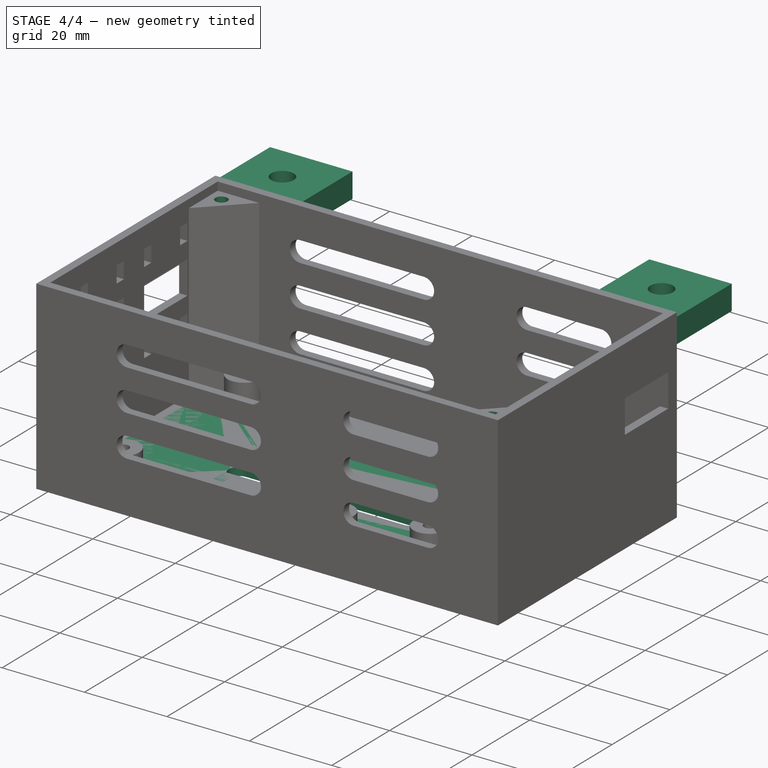
[diagram: stage 4 of 4 — iso view after this stage's code; geometry added in this stage tinted green]
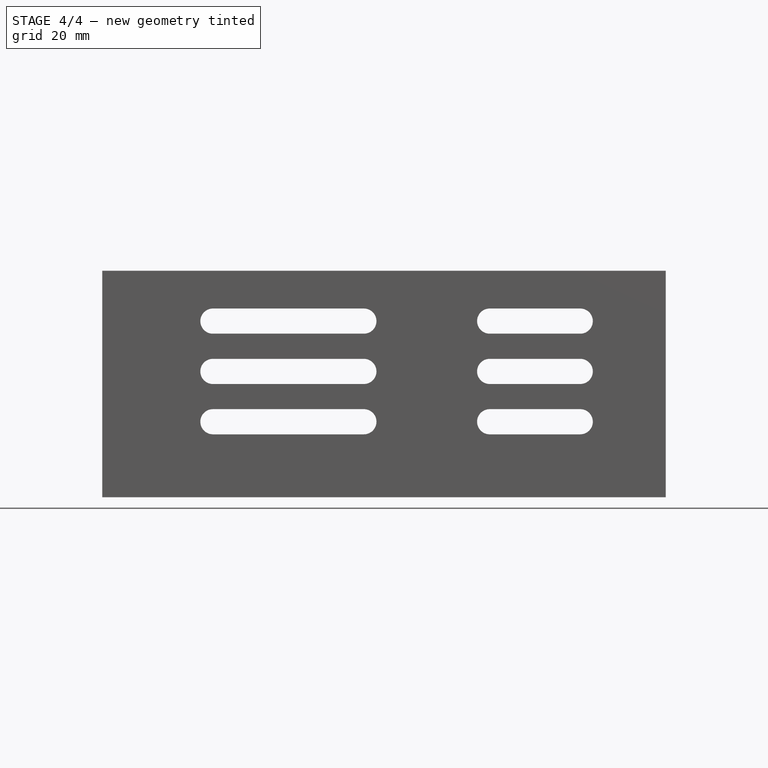
[diagram: stage 4 of 4 — front view after this stage's code; geometry added in this stage tinted green]
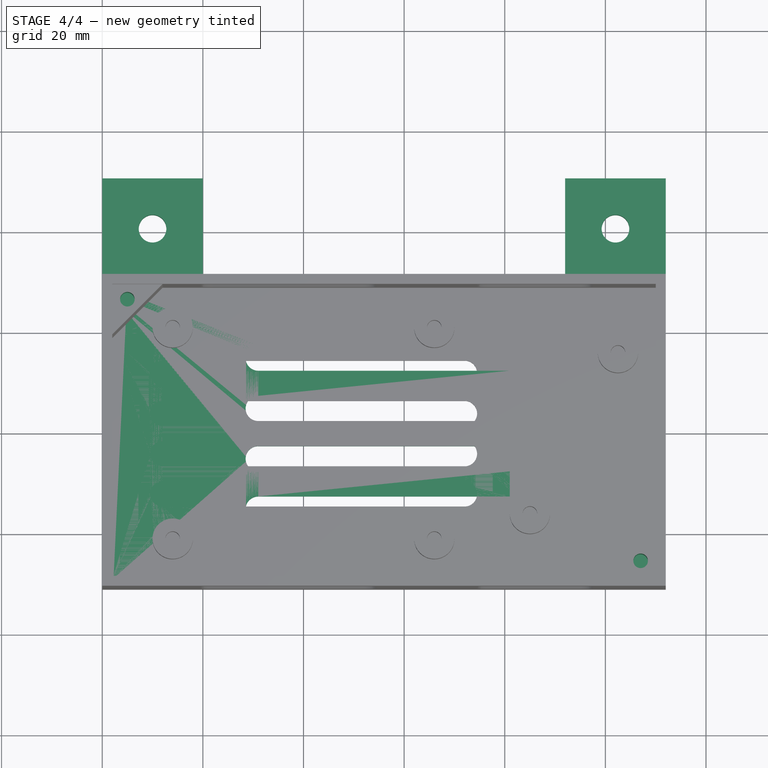
[diagram: stage 4 of 4 — top view after this stage's code; geometry added in this stage tinted green]
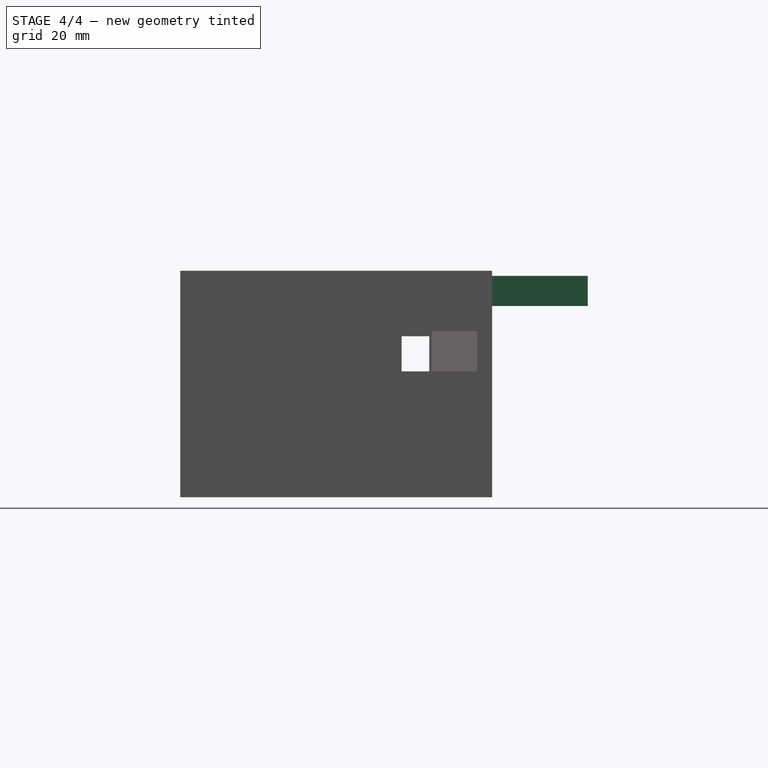
[diagram: stage 4 of 4 — right view after this stage's code; geometry added in this stage tinted green]
FEATURE [PartDesign::Plane] DatumPlane
  AttachmentOffset = pos=(0,0,43) rot=(0,0,1;0rad)
  Length = 131.049
  MapMode = 5
  Placement = pos=(0,0,43) rot=(0,0,1;0rad)
  ResizeMode = 0
  Support = -> [XY_Plane002]
  Width = 100.049
FEATURE [Sketcher::SketchObject] Sketch007
  FullyConstrained = true
  MapMode = 5
  Placement = pos=(0,0,43) rot=(0,0,1;0rad)
  Support = -> [DatumPlane]
  sketch-geometry (2):
    g0: Circle CenterX=-35 CenterY=26 CenterZ=0 NormalX=0 NormalY=0 NormalZ=1 AngleXU=0 Radius=1.45
    g1: Circle CenterX=67 CenterY=-26 CenterZ=0 NormalX=0 NormalY=0 NormalZ=1 AngleXU=0 Radius=1.45
  constraints (6):
    c: Diameter(g0) = 2.9
    c: DistanceX(g0,g-1) = 35
    c: DistanceY(g0) = 26
    c: Equal(g0,g1)
    c: DistanceY(g1,g-1) = 26
    c: DistanceX(g1) = 67
FEATURE [PartDesign::Pocket] Pocket004
  BaseFeature = -> Pad002
  Direction = (0,0,-1)
  Length = 10
  Length2 = 5
  Profile = -> Sketch007
  ReferenceAxis = -> Sketch007 [N_Axis]
  Refine = true
  Type = 0
FEATURE [Sketcher::SketchObject] Sketch008
  FullyConstrained = true
  MapMode = 5
  Support = -> [XY_Plane003]
  sketch-geometry (29):
    g0: LineSegment StartX=-37.75 StartY=28.75 StartZ=0 EndX=69.75 EndY=28.75 EndZ=0
    g1: LineSegment StartX=69.75 StartY=28.75 StartZ=0 EndX=69.75 EndY=-28.75 EndZ=0
    g2: LineSegment StartX=69.75 StartY=-28.75 StartZ=0 EndX=-37.75 EndY=-28.75 EndZ=0
    g3: LineSegment StartX=-37.75 StartY=-28.75 StartZ=0 EndX=-37.75 EndY=28.75 EndZ=0
    g4: Circle CenterX=-35 CenterY=26 CenterZ=0 NormalX=0 NormalY=0 NormalZ=1 AngleXU=0 Radius=1.75
    g5: Circle CenterX=67 CenterY=-26 CenterZ=0 NormalX=0 NormalY=0 NormalZ=1 AngleXU=0 Radius=1.75
    g6: ArcOfCircle CenterX=-9 CenterY=15 CenterZ=0 NormalX=0 NormalY=0 NormalZ=1 AngleXU=0 Radius=2.5 StartAngle=1.5708 EndAngle=4.71239
    g7: ArcOfCircle CenterX=41 CenterY=15 CenterZ=0 NormalX=0 NormalY=0 NormalZ=1 AngleXU=0 Radius=2.5 StartAngle=4.71239 EndAngle=7.85398
    g8: LineSegment StartX=-9 StartY=12.5 StartZ=0 EndX=41 EndY=12.5 EndZ=0
    g9: LineSegment StartX=41 StartY=17.5 StartZ=0 EndX=-9 EndY=17.5 EndZ=0
    g10: ArcOfCircle CenterX=-9 CenterY=5 CenterZ=0 NormalX=0 NormalY=0 NormalZ=1 AngleXU=0 Radius=2.5 StartAngle=1.5708 EndAngle=4.71239
    g11: ArcOfCircle CenterX=41 CenterY=5 CenterZ=0 NormalX=0 NormalY=0 NormalZ=1 AngleXU=0 Radius=2.5 StartAngle=4.71239 EndAngle=7.85398
    g12: LineSegment StartX=-9 StartY=2.5 StartZ=0 EndX=41 EndY=2.5 EndZ=0
    g13: LineSegment StartX=41 StartY=7.5 StartZ=0 EndX=-9 EndY=7.5 EndZ=0
    g14: ArcOfCircle CenterX=-9 CenterY=-5 CenterZ=0 NormalX=0 NormalY=0 NormalZ=1 AngleXU=0 Radius=2.5 StartAngle=1.5708 EndAngle=4.71239
    g15: ArcOfCircle CenterX=41 CenterY=-5 CenterZ=0 NormalX=0 NormalY=0 NormalZ=1 AngleXU=0 Radius=2.5 StartAngle=4.71239 EndAngle=7.85398
    g16: LineSegment StartX=-9 StartY=-7.5 StartZ=0 EndX=41 EndY=-7.5 EndZ=0
    g17: LineSegment StartX=41 StartY=-2.5 StartZ=0 EndX=-9 EndY=-2.5 EndZ=0
    g18: ArcOfCircle CenterX=-9 CenterY=-15 CenterZ=0 NormalX=0 NormalY=0 NormalZ=1 AngleXU=0 Radius=2.5 StartAngle=1.5708 EndAngle=4.71239
    g19: ArcOfCircle CenterX=41 CenterY=-15 CenterZ=0 NormalX=0 NormalY=0 NormalZ=1 AngleXU=0 Radius=2.5 StartAngle=4.71239 EndAngle=7.85398
    g20: LineSegment StartX=-9 StartY=-17.5 StartZ=0 EndX=41 EndY=-17.5 EndZ=0
    g21: LineSegment StartX=41 StartY=-12.5 StartZ=0 EndX=-9 EndY=-12.5 EndZ=0
    g22: LineSegment StartX=-9 StartY=15 StartZ=0 EndX=-9 EndY=5 EndZ=0
    g23: LineSegment StartX=-9 StartY=5 StartZ=0 EndX=-9 EndY=-5 EndZ=0
    g24: LineSegment StartX=-9 StartY=-5 StartZ=0 EndX=-9 EndY=-15 EndZ=0
    g25: LineSegment StartX=-9 StartY=-5 StartZ=0 EndX=-37.75 EndY=-5 EndZ=0
    g26: LineSegment StartX=41 StartY=-5 StartZ=0 EndX=69.75 EndY=-5 EndZ=0
    g27: LineSegment StartX=-9 StartY=15 StartZ=0 EndX=-9 EndY=28.75 EndZ=0
    g28: LineSegment StartX=-9 StartY=-15 StartZ=0 EndX=-9 EndY=-28.75 EndZ=0
  constraints (76):
    c: Coincident(g0,g1)
    c: Coincident(g1,g2)
    c: Coincident(g2,g3)
    c: Coincident(g3,g0)
    c: Horizontal(g0)
    c: Horizontal(g2)
    c: Vertical(g1)
    c: Vertical(g3)
    c: DistanceY(g0) = 28.75
    c: DistanceX(g-1,g0) = 69.75
    c: DistanceY(g1,g1) = 57.5
    c: DistanceX(g0,g0) = 107.5
    c: Diameter(g4) = 3.5
    c: DistanceY(g-1,g4) = 26
    c: DistanceX(g4,g-1) = 35
    c: Equal(g5,g4)
    c: DistanceX(g-1,g5) = 67
    c: DistanceY(g5,g-1) = 26
    c: Tangent(g6,g8) = -1.5708
    c: Tangent(g8,g7) = -1.5708
    c: Tangent(g7,g9) = -1.5708
    c: Tangent(g9,g6) = -1.5708
    c: Equal(g6,g7)
    c: Horizontal(g8)
    c: Tangent(g10,g12) = -1.5708
    c: Tangent(g12,g11) = -1.5708
    c: Tangent(g11,g13) = -1.5708
    c: Tangent(g13,g10) = -1.5708
    c: Equal(g10,g11)
    c: Horizontal(g12)
    c: Tangent(g14,g16) = -1.5708
    c: Tangent(g16,g15) = -1.5708
    c: Tangent(g15,g17) = -1.5708
    c: Tangent(g17,g14) = -1.5708
    c: Equal(g14,g15)
    c: Horizontal(g16)
    c: Tangent(g18,g20) = -1.5708
    c: Tangent(g20,g19) = -1.5708
    c: Tangent(g19,g21) = -1.5708
    c: Tangent(g21,g18) = -1.5708
    c: Equal(g18,g19)
    c: Horizontal(g20)
    c: Diameter(g7) = 5
    c: Equal(g11,g7)
    c: Equal(g7,g15)
    c: Equal(g15,g19)
    c: Equal(g17,g21)
    c: Equal(g21,g13)
    c: Equal(g13,g9)
    c: Vertical(g6,g10)
    c: Vertical(g10,g14)
    c: Vertical(g14,g18)
    c: Coincident(g22,g6)
    c: Coincident(g22,g10)
    c: Coincident(g23,g10)
    c: Coincident(g23,g14)
    c: Coincident(g24,g14)
    c: Coincident(g24,g18)
    c: Equal(g24,g23)
    c: Equal(g23,g22)
    c: DistanceY(g22,g22) = 10
    c: Coincident(g25,g14)
    c: PointOnObject(g25,g3)
    c: Horizontal(g25)
    c: Coincident(g26,g15)
    c: PointOnObject(g26,g1)
    c: Horizontal(g26)
    c: Equal(g26,g25)
    c: Coincident(g27,g6)
    c: PointOnObject(g27,g0)
    c: Vertical(g27)
    c: Coincident(g28,g18)
    c: PointOnObject(g28,g2)
    c: Vertical(g28)
    c: Equal(g28,g27)
    c: DistanceX(g9,g9) = 50
FEATURE [PartDesign::Pad] Pad003
  Direction = (0,0,1)
  Length = 2
  Length2 = 10
  Profile = -> Sketch008
  ReferenceAxis = -> Sketch008 [N_Axis]
  Refine = true
  Type = 0
FEATURE [PartDesign::Body] Body001  label="Lid"
  Group = -> [Sketch008,Pad003]
  Origin = -> Origin003
  Placement = pos=(0,0,43) rot=(0,0,1;0rad)
  Tip = -> Pad003
FEATURE [PartDesign::Plane] DatumPlane001
  AttachmentOffset = pos=(0,0,38) rot=(0,0,1;0rad)
  Length = 131.049
  MapMode = 5
  Placement = pos=(0,0,38) rot=(0,0,1;0rad)
  ResizeMode = 0
  Support = -> [XY_Plane002]
  Width = 100.049
FEATURE [Sketcher::SketchObject] Sketch009
  FullyConstrained = true
  MapMode = 5
  Placement = pos=(0,0,38) rot=(0,0,1;0rad)
  Support = -> [DatumPlane001]
  sketch-geometry (10):
    g0: LineSegment StartX=-40 StartY=50 StartZ=0 EndX=-20 EndY=50 EndZ=0
    g1: LineSegment StartX=-20 StartY=50 StartZ=0 EndX=-20 EndY=30 EndZ=0
    g2: LineSegment StartX=-20 StartY=30 StartZ=0 EndX=-40 EndY=30 EndZ=0
    g3: LineSegment StartX=-40 StartY=30 StartZ=0 EndX=-40 EndY=50 EndZ=0
    g4: LineSegment StartX=52 StartY=50 StartZ=0 EndX=72 EndY=50 EndZ=0
    g5: LineSegment StartX=72 StartY=50 StartZ=0 EndX=72 EndY=30 EndZ=0
    g6: LineSegment StartX=72 StartY=30 StartZ=0 EndX=52 EndY=30 EndZ=0
    g7: LineSegment StartX=52 StartY=30 StartZ=0 EndX=52 EndY=50 EndZ=0
    g8: Circle CenterX=-30 CenterY=40 CenterZ=0 NormalX=0 NormalY=0 NormalZ=1 AngleXU=0 Radius=2.75
    g9: Circle CenterX=62 CenterY=40 CenterZ=0 NormalX=0 NormalY=0 NormalZ=1 AngleXU=0 Radius=2.75
  constraints (28):
    c: Coincident(g0,g1)
    c: Coincident(g1,g2)
    c: Coincident(g2,g3)
    c: Coincident(g3,g0)
    c: Horizontal(g0)
    c: Horizontal(g2)
    c: Vertical(g1)
    c: Vertical(g3)
    c: Coincident(g4,g5)
    c: Coincident(g5,g6)
    c: Coincident(g6,g7)
    c: Coincident(g7,g4)
    c: Horizontal(g4)
    c: Horizontal(g6)
    c: Vertical(g5)
    c: Vertical(g7)
    c: Equal(g4,g0)
    c: Equal(g0,g1)
    c: Equal(g1,g7)
    c: DistanceX(g4,g4) = 20
    c: Horizontal(g0,g4)
    c: DistanceX(g0,g-1) = 40
    c: DistanceY(g-1,g1) = 30
    c: DistanceX(g-1,g5) = 72
    c: Diameter(g8) = 5.5
    c: Symmetric(g0,g1,g8)
    c: Equal(g8,g9)
    c: Symmetric(g5,g4,g9)
FEATURE [PartDesign::Pad] Pad004
  BaseFeature = -> Pocket004
  Direction = (0,0,1)
  Length = 6
  Length2 = 10
  Profile = -> Sketch009
  ReferenceAxis = -> Sketch009 [N_Axis]
  Refine = true
  Type = 0
FEATURE [PartDesign::Body] Body  label="Box"
  Group = -> [Binder,Sketch,Pad,Thickness,Sketch001,Pad001,Sketch002,Pocket,Sketch003,Pocket001,Sketch004,Pocket002,Sketch005,Pocket003,Sketch006,Pad002,DatumPlane,Sketch007,Pocket004,DatumPlane001,Sketch009,Pad004]
  Origin = -> Origin002
  Tip = -> Pad004
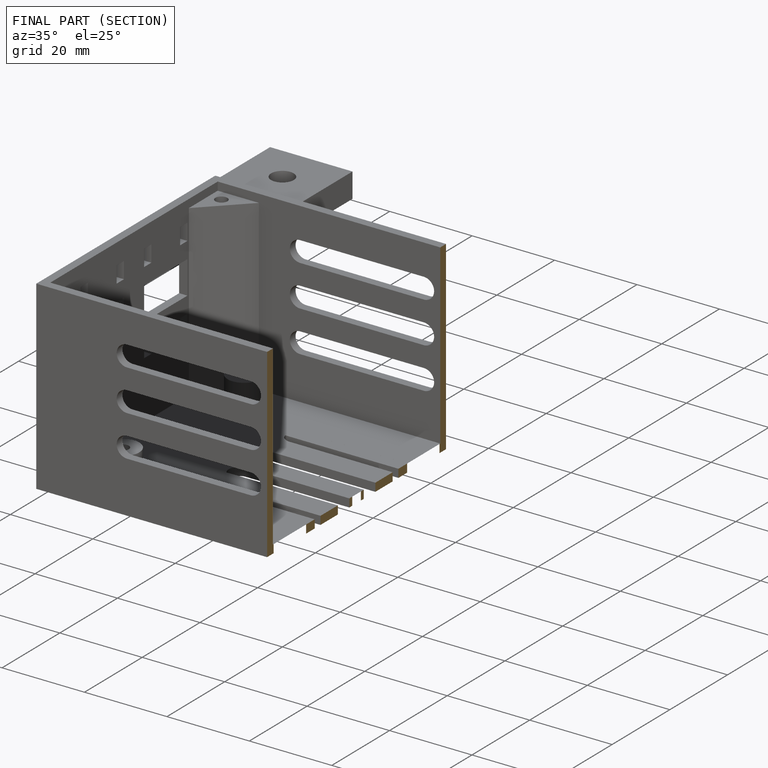
[diagram: finished part — half-section view (interior)]
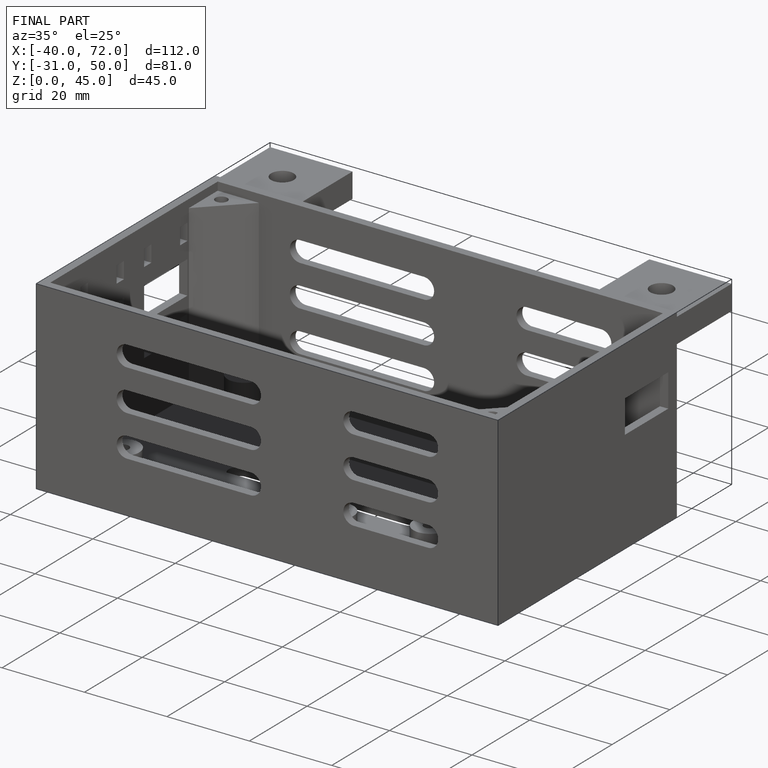
[diagram: finished part — iso view with bounding-box wireframe]
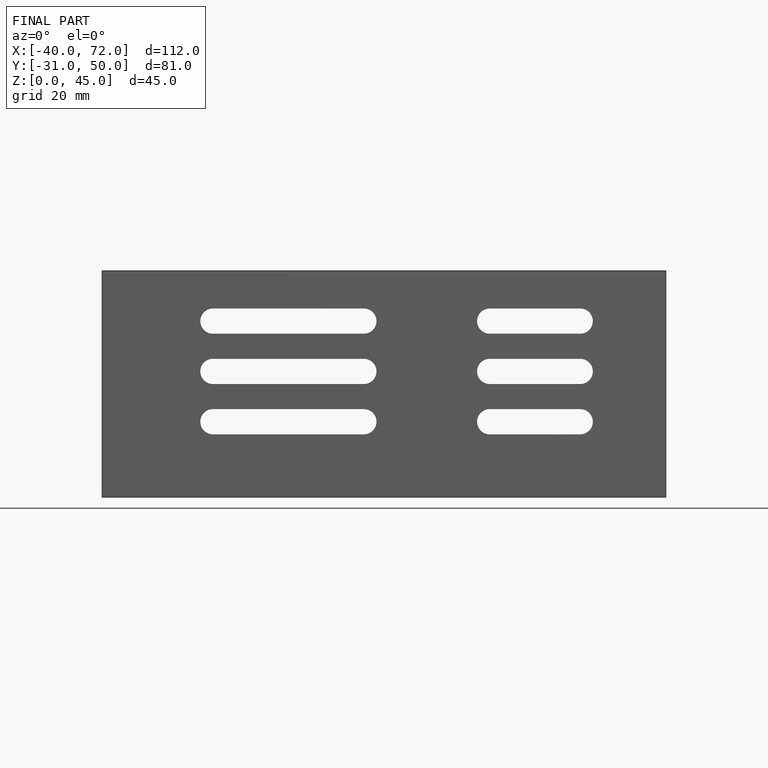
[diagram: finished part — front view with bounding-box wireframe]
